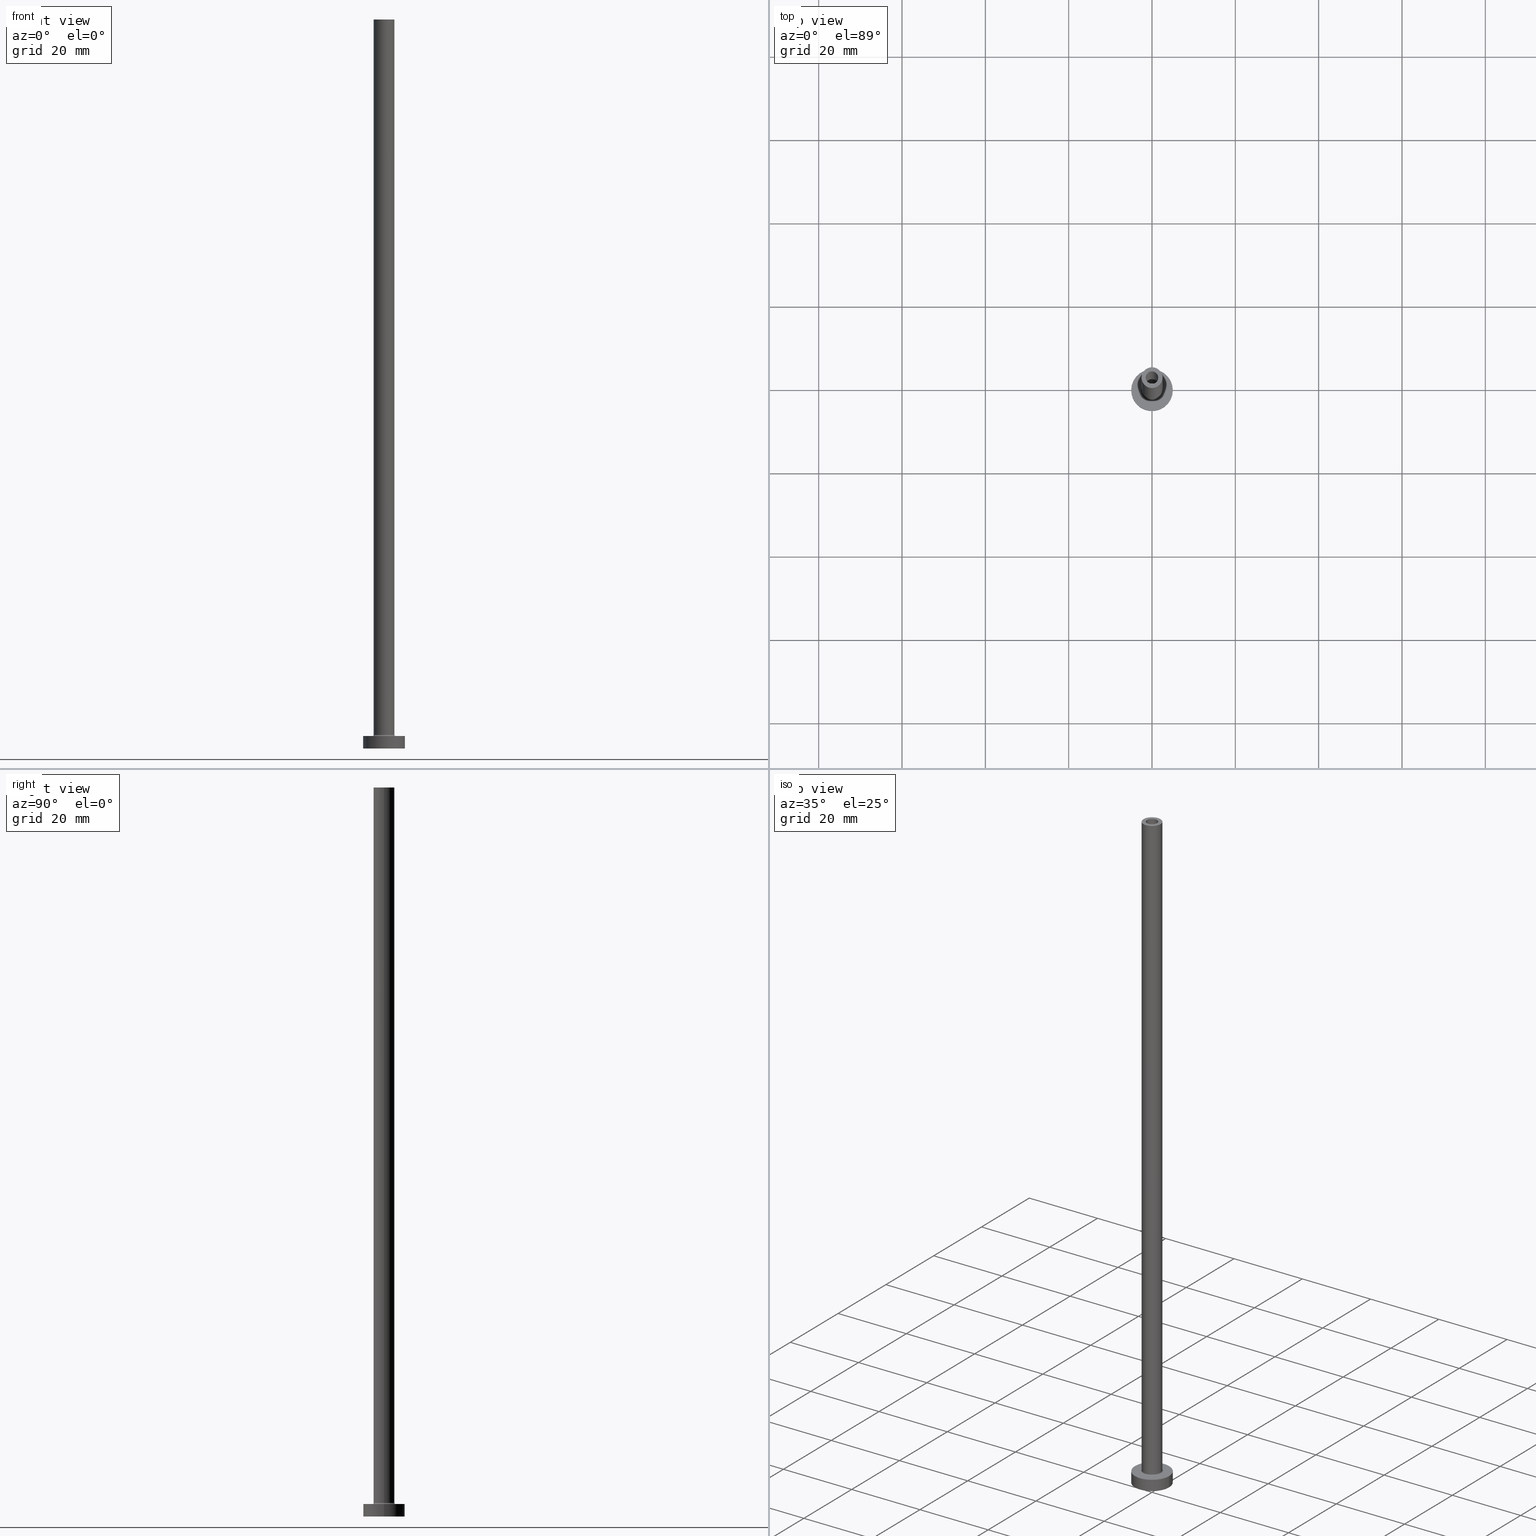
[diagram: canonical four-view strip — front | top / right | iso, engineering-drawing reading convention]
A machine part, canonical four-view strip (front | top / right | iso — engineering-drawing reading convention). The complete STEP part file that produces these views, byte-faithful:
ISO-10303-21;
HEADER;
FILE_DESCRIPTION (( 'STEP AP203' ),
    '1' );
FILE_NAME ('0bfa.STEP',
    '2023-02-13T18:01:52',
    ( '' ),
    ( '' ),
    'SwSTEP 2.0',
    'SolidWorks 2019',
    '' );
FILE_SCHEMA (( 'CONFIG_CONTROL_DESIGN' ));
ENDSEC;

DATA;
#1 = APPLICATION_PROTOCOL_DEFINITION ( 'international standard', 'config_control_design', 1994, #154 ) ;
#2 = COORDINATED_UNIVERSAL_TIME_OFFSET ( 1, 0, .AHEAD. ) ;
#3 = DIRECTION ( 'NONE',  ( 0.000000000000000000, -1.000000000000000000, 0.000000000000000000 ) ) ;
#4 = ORIENTED_EDGE ( 'NONE', *, *, #217, .T. ) ;
#5 = AXIS2_PLACEMENT_3D ( 'NONE', #262, #376, #23 ) ;
#6 = DIRECTION ( 'NONE',  ( 0.000000000000000000, 0.000000000000000000, 1.000000000000000000 ) ) ;
#7 = LOCAL_TIME ( 19, 1, 52.00000000000000000, #389 ) ;
#8 = ORIENTED_EDGE ( 'NONE', *, *, #382, .T. ) ;
#9 = DATE_TIME_ROLE ( 'creation_date' ) ;
#10 = PLANE ( 'NONE',  #447 ) ;
#11 = ORIENTED_EDGE ( 'NONE', *, *, #56, .T. ) ;
#12 = DIRECTION ( 'NONE',  ( -0.000000000000000000, -0.000000000000000000, -1.000000000000000000 ) ) ;
#13 = CC_DESIGN_PERSON_AND_ORGANIZATION_ASSIGNMENT ( #461, #65, ( #83 ) ) ;
#14 = CYLINDRICAL_SURFACE ( 'NONE', #105, 2.500000000000000000 ) ;
#15 = CYLINDRICAL_SURFACE ( 'NONE', #69, 5.000000000000000000 ) ;
#16 = PLANE ( 'NONE',  #133 ) ;
#17 = VECTOR ( 'NONE', #340, 1000.000000000000000 ) ;
#18 = VERTEX_POINT ( 'NONE', #158 ) ;
#19 = DIRECTION ( 'NONE',  ( -1.000000000000000000, 0.000000000000000000, 0.000000000000000000 ) ) ;
#20 = EDGE_CURVE ( 'NONE', #131, #160, #30, .T. ) ;
#21 = CARTESIAN_POINT ( 'NONE',  ( -2.799999999999999822, 3.429011037612588783E-16, 3.299999999999997158 ) ) ;
#22 = CYLINDRICAL_SURFACE ( 'NONE', #421, 1.500000000000000222 ) ;
#23 = DIRECTION ( 'NONE',  ( 1.000000000000000000, 0.000000000000000000, -0.000000000000000000 ) ) ;
#24 = CIRCLE ( 'NONE', #299, 1.650000000000000133 ) ;
#25 = DIRECTION ( 'NONE',  ( 1.000000000000000000, 0.000000000000000000, 0.000000000000000000 ) ) ;
#26 = ORIENTED_EDGE ( 'NONE', *, *, #425, .T. ) ;
#27 = CARTESIAN_POINT ( 'NONE',  ( 2.799999999999999822, 0.000000000000000000, 2.999999999999998668 ) ) ;
#28 = CALENDAR_DATE ( 2023, 13, 2 ) ;
#29 = CARTESIAN_POINT ( 'NONE',  ( 0.000000000000000000, 0.000000000000000000, 3.299999999999997158 ) ) ;
#30 = CIRCLE ( 'NONE', #196, 0.2999999999999999334 ) ;
#31 = CARTESIAN_POINT ( 'NONE',  ( 1.500000000000000222, 1.836970198721029934E-16, 175.0000000000000000 ) ) ;
#32 = CARTESIAN_POINT ( 'NONE',  ( 1.500000000000000222, 1.836970198721029934E-16, 130.0000000000000000 ) ) ;
#33 = AXIS2_PLACEMENT_3D ( 'NONE', #364, #222, #145 ) ;
#34 = CARTESIAN_POINT ( 'NONE',  ( -1.650000000000000133, 0.000000000000000000, 0.000000000000000000 ) ) ;
#35 = CARTESIAN_POINT ( 'NONE',  ( 0.000000000000000000, 0.000000000000000000, 3.000000000000000000 ) ) ;
#36 = VERTEX_POINT ( 'NONE', #162 ) ;
#37 = CARTESIAN_POINT ( 'NONE',  ( 0.000000000000000000, 0.000000000000000000, 0.000000000000000000 ) ) ;
#38 = PRODUCT_DEFINITION ( 'NEZN�M�', '', #41, #413 ) ;
#39 = DIRECTION ( 'NONE',  ( 0.000000000000000000, 0.000000000000000000, -1.000000000000000000 ) ) ;
#40 = PERSON_AND_ORGANIZATION_ROLE ( 'creator' ) ;
#41 = PRODUCT_DEFINITION_FORMATION_WITH_SPECIFIED_SOURCE ( 'LIBOVOLN�', '', #209, .NOT_KNOWN. ) ;
#42 = CARTESIAN_POINT ( 'NONE',  ( 0.000000000000000000, 0.000000000000000000, 130.0000000000000000 ) ) ;
#43 = CC_DESIGN_PERSON_AND_ORGANIZATION_ASSIGNMENT ( #453, #423, ( #41 ) ) ;
#44 = FACE_OUTER_BOUND ( 'NONE', #337, .T. ) ;
#45 = ORIENTED_EDGE ( 'NONE', *, *, #56, .F. ) ;
#46 = DIRECTION ( 'NONE',  ( 1.000000000000000000, 0.000000000000000000, 0.000000000000000000 ) ) ;
#47 = ORIENTED_EDGE ( 'NONE', *, *, #356, .T. ) ;
#48 = CIRCLE ( 'NONE', #136, 2.500000000000000000 ) ;
#49 = ORIENTED_EDGE ( 'NONE', *, *, #144, .F. ) ;
#50 = AXIS2_PLACEMENT_3D ( 'NONE', #309, #419, #166 ) ;
#51 = ADVANCED_FACE ( 'NONE', ( #445 ), #15, .T. ) ;
#52 = FACE_OUTER_BOUND ( 'NONE', #58, .T. ) ;
#53 = DIRECTION ( 'NONE',  ( -0.000000000000000000, -0.000000000000000000, -1.000000000000000000 ) ) ;
#54 = CARTESIAN_POINT ( 'NONE',  ( 0.000000000000000000, 0.000000000000000000, 3.000000000000000000 ) ) ;
#55 = CARTESIAN_POINT ( 'NONE',  ( 0.000000000000000000, 0.000000000000000000, 0.000000000000000000 ) ) ;
#56 = EDGE_CURVE ( 'NONE', #147, #442, #347, .T. ) ;
#57 = VECTOR ( 'NONE', #358, 1000.000000000000000 ) ;
#58 = EDGE_LOOP ( 'NONE', ( #459, #330, #100, #211 ) ) ;
#59 = EDGE_CURVE ( 'NONE', #441, #131, #48, .T. ) ;
#60 = PERSON_AND_ORGANIZATION_ROLE ( 'creator' ) ;
#61 = DIRECTION ( 'NONE',  ( 0.000000000000000000, 0.000000000000000000, 1.000000000000000000 ) ) ;
#62 = CIRCLE ( 'NONE', #157, 1.500000000000000222 ) ;
#63 = CC_DESIGN_DATE_AND_TIME_ASSIGNMENT ( #317, #143, ( #83 ) ) ;
#64 = PERSON ( 'NEUR�EN�', 'NEUR�EN�', 'NEUR�EN�', ('NEUR�EN�'), ('NEUR�EN�'), ('NEUR�EN�') ) ;
#65 = PERSON_AND_ORGANIZATION_ROLE ( 'classification_officer' ) ;
#66 = MANIFOLD_SOLID_BREP ( 'Odebrat vysunut�m4', #434 ) ;
#67 = LINE ( 'NONE', #220, #57 ) ;
#68 = APPROVAL_ROLE ( '' ) ;
#69 = AXIS2_PLACEMENT_3D ( 'NONE', #416, #379, #129 ) ;
#70 = ORIENTED_EDGE ( 'NONE', *, *, #374, .T. ) ;
#71 = CARTESIAN_POINT ( 'NONE',  ( 1.650000000000000133, 2.020667218593133001E-16, 0.000000000000000000 ) ) ;
#72 = CALENDAR_DATE ( 2023, 13, 2 ) ;
#73 = PERSON_AND_ORGANIZATION ( #64, #216 ) ;
#74 = APPROVAL_PERSON_ORGANIZATION ( #427, #152, #68 ) ;
#75 = CC_DESIGN_APPROVAL ( #412, ( #83 ) ) ;
#76 = DIRECTION ( 'NONE',  ( -1.000000000000000000, 0.000000000000000000, 0.000000000000000000 ) ) ;
#77 = DIRECTION ( 'NONE',  ( 1.000000000000000000, 0.000000000000000000, -0.000000000000000000 ) ) ;
#78 = ADVANCED_FACE ( 'NONE', ( #92, #265 ), #411, .T. ) ;
#79 = ORIENTED_EDGE ( 'NONE', *, *, #277, .T. ) ;
#80 = DIRECTION ( 'NONE',  ( 0.000000000000000000, 0.000000000000000000, 1.000000000000000000 ) ) ;
#81 = AXIS2_PLACEMENT_3D ( 'NONE', #267, #404, #192 ) ;
#82 = CARTESIAN_POINT ( 'NONE',  ( 0.000000000000000000, 0.000000000000000000, 0.000000000000000000 ) ) ;
#83 = SECURITY_CLASSIFICATION ( '', '', #352 ) ;
#84 = ORIENTED_EDGE ( 'NONE', *, *, #296, .F. ) ;
#85 = DIRECTION ( 'NONE',  ( 0.000000000000000000, 0.000000000000000000, 1.000000000000000000 ) ) ;
#86 = DIRECTION ( 'NONE',  ( 0.000000000000000000, 0.000000000000000000, -1.000000000000000000 ) ) ;
#87 = ORIENTED_EDGE ( 'NONE', *, *, #275, .F. ) ;
#88 = DIRECTION ( 'NONE',  ( -0.000000000000000000, -0.000000000000000000, -1.000000000000000000 ) ) ;
#89 = CARTESIAN_POINT ( 'NONE',  ( -1.500000000000000222, 0.000000000000000000, 175.0000000000000000 ) ) ;
#90 = LINE ( 'NONE', #114, #138 ) ;
#91 = CARTESIAN_POINT ( 'NONE',  ( -2.500000000000000000, 0.000000000000000000, 175.0000000000000000 ) ) ;
#92 = FACE_BOUND ( 'NONE', #263, .T. ) ;
#93 = CIRCLE ( 'NONE', #198, 5.000000000000000000 ) ;
#94 = AXIS2_PLACEMENT_3D ( 'NONE', #238, #88, #308 ) ;
#95 = EDGE_LOOP ( 'NONE', ( #455, #300 ) ) ;
#96 = DIRECTION ( 'NONE',  ( -1.000000000000000000, 1.224646799147353207E-16, 0.000000000000000000 ) ) ;
#97 = PLANE ( 'NONE',  #290 ) ;
#98 = DIRECTION ( 'NONE',  ( 1.000000000000000000, 0.000000000000000000, 0.000000000000000000 ) ) ;
#99 = AXIS2_PLACEMENT_3D ( 'NONE', #186, #80, #181 ) ;
#100 = ORIENTED_EDGE ( 'NONE', *, *, #217, .F. ) ;
#101 = DIRECTION ( 'NONE',  ( 0.000000000000000000, 0.000000000000000000, 1.000000000000000000 ) ) ;
#102 = CARTESIAN_POINT ( 'NONE',  ( 5.000000000000000000, 6.123233995736766282E-16, 3.000000000000000000 ) ) ;
#103 = APPROVAL_STATUS ( 'not_yet_approved' ) ;
#104 = DIRECTION ( 'NONE',  ( -0.000000000000000000, -0.000000000000000000, -1.000000000000000000 ) ) ;
#105 = AXIS2_PLACEMENT_3D ( 'NONE', #126, #306, #380 ) ;
#106 = CALENDAR_DATE ( 2023, 13, 2 ) ;
#107 = UNCERTAINTY_MEASURE_WITH_UNIT (LENGTH_MEASURE( 1.000000000000000082E-05 ), #449, 'distance_accuracy_value', 'NONE');
#108 = EDGE_CURVE ( 'NONE', #36, #18, #327, .T. ) ;
#109 = VERTEX_POINT ( 'NONE', #194 ) ;
#110 = DIRECTION ( 'NONE',  ( 0.000000000000000000, 0.000000000000000000, -1.000000000000000000 ) ) ;
#111 = AXIS2_PLACEMENT_3D ( 'NONE', #369, #295, #328 ) ;
#112 = CIRCLE ( 'NONE', #205, 1.650000000000000133 ) ;
#113 = CARTESIAN_POINT ( 'NONE',  ( 0.000000000000000000, 0.000000000000000000, 130.0000000000000000 ) ) ;
#114 = CARTESIAN_POINT ( 'NONE',  ( -2.500000000000000000, 0.000000000000000000, 175.0000000000000000 ) ) ;
#115 = EDGE_CURVE ( 'NONE', #224, #448, #368, .T. ) ;
#116 = DIRECTION ( 'NONE',  ( 0.000000000000000000, 0.000000000000000000, 1.000000000000000000 ) ) ;
#117 = CC_DESIGN_PERSON_AND_ORGANIZATION_ASSIGNMENT ( #256, #40, ( #38 ) ) ;
#118 = DIRECTION ( 'NONE',  ( 0.000000000000000000, 0.000000000000000000, 1.000000000000000000 ) ) ;
#119 = ORIENTED_EDGE ( 'NONE', *, *, #202, .T. ) ;
#120 = AXIS2_PLACEMENT_3D ( 'NONE', #319, #454, #178 ) ;
#121 = DIRECTION ( 'NONE',  ( 1.000000000000000000, 0.000000000000000000, 0.000000000000000000 ) ) ;
#122 = DIRECTION ( 'NONE',  ( -1.000000000000000000, 0.000000000000000000, 0.000000000000000000 ) ) ;
#123 = DIRECTION ( 'NONE',  ( 0.000000000000000000, 0.000000000000000000, 1.000000000000000000 ) ) ;
#124 = EDGE_CURVE ( 'NONE', #197, #109, #420, .T. ) ;
#125 = DIRECTION ( 'NONE',  ( -1.000000000000000000, 0.000000000000000000, 0.000000000000000000 ) ) ;
#126 = CARTESIAN_POINT ( 'NONE',  ( 0.000000000000000000, 0.000000000000000000, 175.0000000000000000 ) ) ;
#127 = CC_DESIGN_PERSON_AND_ORGANIZATION_ASSIGNMENT ( #227, #248, ( #209 ) ) ;
#128 = FACE_OUTER_BOUND ( 'NONE', #95, .T. ) ;
#129 = DIRECTION ( 'NONE',  ( -1.000000000000000000, 0.000000000000000000, 0.000000000000000000 ) ) ;
#130 = CC_DESIGN_APPROVAL ( #152, ( #38 ) ) ;
#131 = VERTEX_POINT ( 'NONE', #384 ) ;
#132 = ADVANCED_FACE ( 'NONE', ( #52 ), #228, .F. ) ;
#133 = AXIS2_PLACEMENT_3D ( 'NONE', #159, #301, #264 ) ;
#134 = ORIENTED_EDGE ( 'NONE', *, *, #124, .F. ) ;
#135 = PERSON_AND_ORGANIZATION ( #64, #216 ) ;
#136 = AXIS2_PLACEMENT_3D ( 'NONE', #331, #123, #121 ) ;
#137 = CARTESIAN_POINT ( 'NONE',  ( 0.000000000000000000, 0.000000000000000000, 134.6669047558312116 ) ) ;
#138 = VECTOR ( 'NONE', #12, 1000.000000000000000 ) ;
#139 = LINE ( 'NONE', #280, #315 ) ;
#140 = EDGE_CURVE ( 'NONE', #441, #424, #402, .T. ) ;
#141 = ORIENTED_EDGE ( 'NONE', *, *, #329, .T. ) ;
#142 = DIRECTION ( 'NONE',  ( 0.000000000000000000, 0.000000000000000000, -1.000000000000000000 ) ) ;
#143 = DATE_TIME_ROLE ( 'classification_date' ) ;
#144 = EDGE_CURVE ( 'NONE', #160, #424, #203, .T. ) ;
#145 = DIRECTION ( 'NONE',  ( 1.000000000000000000, 0.000000000000000000, 0.000000000000000000 ) ) ;
#146 = CARTESIAN_POINT ( 'NONE',  ( 2.799999999999999822, 0.000000000000000000, 3.299999999999997158 ) ) ;
#147 = VERTEX_POINT ( 'NONE', #373 ) ;
#148 = ORIENTED_EDGE ( 'NONE', *, *, #259, .F. ) ;
#149 = CIRCLE ( 'NONE', #359, 1.500000000000000222 ) ;
#150 = FACE_OUTER_BOUND ( 'NONE', #219, .T. ) ;
#151 = ORIENTED_EDGE ( 'NONE', *, *, #275, .T. ) ;
#152 = APPROVAL ( #278, 'NEUR�EN�' ) ;
#153 = ORIENTED_EDGE ( 'NONE', *, *, #115, .F. ) ;
#154 = APPLICATION_CONTEXT ( 'configuration controlled 3d designs of mechanical parts and assemblies' ) ;
#155 = ORIENTED_EDGE ( 'NONE', *, *, #210, .F. ) ;
#156 = EDGE_CURVE ( 'NONE', #261, #131, #90, .T. ) ;
#157 = AXIS2_PLACEMENT_3D ( 'NONE', #42, #118, #46 ) ;
#158 = CARTESIAN_POINT ( 'NONE',  ( 1.650000000000000133, 2.020667218593133001E-16, 130.0000000000000000 ) ) ;
#159 = CARTESIAN_POINT ( 'NONE',  ( 0.000000000000000000, 0.000000000000000000, 3.000000000000000000 ) ) ;
#160 = VERTEX_POINT ( 'NONE', #184 ) ;
#161 = ADVANCED_FACE ( 'NONE', ( #190, #443 ), #10, .F. ) ;
#162 = CARTESIAN_POINT ( 'NONE',  ( -1.650000000000000133, 0.000000000000000000, 130.0000000000000000 ) ) ;
#163 = DIRECTION ( 'NONE',  ( 0.000000000000000000, 0.000000000000000000, 1.000000000000000000 ) ) ;
#164 = ORIENTED_EDGE ( 'NONE', *, *, #296, .T. ) ;
#165 = CARTESIAN_POINT ( 'NONE',  ( 0.000000000000000000, 0.000000000000000000, 175.0000000000000000 ) ) ;
#166 = DIRECTION ( 'NONE',  ( 1.000000000000000000, 0.000000000000000000, 0.000000000000000000 ) ) ;
#167 = DIRECTION ( 'NONE',  ( 0.000000000000000000, 0.000000000000000000, -1.000000000000000000 ) ) ;
#168 = LOCAL_TIME ( 19, 1, 52.00000000000000000, #252 ) ;
#169 = CC_DESIGN_SECURITY_CLASSIFICATION ( #83, ( #41 ) ) ;
#170 = ORIENTED_EDGE ( 'NONE', *, *, #144, .T. ) ;
#171 = EDGE_CURVE ( 'NONE', #448, #310, #313, .T. ) ;
#172 = AXIS2_PLACEMENT_3D ( 'NONE', #207, #418, #201 ) ;
#173 = ORIENTED_EDGE ( 'NONE', *, *, #452, .T. ) ;
#174 = APPROVAL ( #321, 'NEUR�EN�' ) ;
#175 = DIRECTION ( 'NONE',  ( 1.000000000000000000, 0.000000000000000000, 0.000000000000000000 ) ) ;
#176 = DATE_AND_TIME ( #429, #231 ) ;
#177 = LINE ( 'NONE', #254, #349 ) ;
#178 = DIRECTION ( 'NONE',  ( 1.000000000000000000, 0.000000000000000000, 0.000000000000000000 ) ) ;
#179 = CIRCLE ( 'NONE', #94, 2.799999999999999822 ) ;
#180 = LINE ( 'NONE', #324, #397 ) ;
#181 = DIRECTION ( 'NONE',  ( 1.000000000000000000, 0.000000000000000000, 0.000000000000000000 ) ) ;
#182 = CARTESIAN_POINT ( 'NONE',  ( -5.000000000000000000, 0.000000000000000000, 3.000000000000000000 ) ) ;
#183 = CYLINDRICAL_SURFACE ( 'NONE', #242, 1.500000000000000222 ) ;
#184 = CARTESIAN_POINT ( 'NONE',  ( -2.799999999999999822, 3.429011037612589276E-16, 2.999999999999998668 ) ) ;
#185 = CARTESIAN_POINT ( 'NONE',  ( 0.000000000000000000, 0.000000000000000000, 175.0000000000000000 ) ) ;
#186 = CARTESIAN_POINT ( 'NONE',  ( 0.000000000000000000, 0.000000000000000000, 130.0000000000000000 ) ) ;
#187 = AXIS2_PLACEMENT_3D ( 'NONE', #29, #101, #25 ) ;
#188 = EDGE_LOOP ( 'NONE', ( #273, #363, #304, #49 ) ) ;
#189 = AXIS2_PLACEMENT_3D ( 'NONE', #35, #332, #232 ) ;
#190 = FACE_BOUND ( 'NONE', #276, .T. ) ;
#191 = ORIENTED_EDGE ( 'NONE', *, *, #408, .F. ) ;
#192 = DIRECTION ( 'NONE',  ( 1.000000000000000000, 0.000000000000000000, 0.000000000000000000 ) ) ;
#193 = ADVANCED_FACE ( 'NONE', ( #150 ), #226, .F. ) ;
#194 = CARTESIAN_POINT ( 'NONE',  ( -5.000000000000000000, 0.000000000000000000, 0.000000000000000000 ) ) ;
#195 = FACE_BOUND ( 'NONE', #334, .T. ) ;
#196 = AXIS2_PLACEMENT_3D ( 'NONE', #21, #303, #96 ) ;
#197 = VERTEX_POINT ( 'NONE', #292 ) ;
#198 = AXIS2_PLACEMENT_3D ( 'NONE', #365, #116, #438 ) ;
#199 = DIRECTION ( 'NONE',  ( -0.000000000000000000, -0.000000000000000000, -1.000000000000000000 ) ) ;
#200 = DIRECTION ( 'NONE',  ( 0.000000000000000000, 0.000000000000000000, 1.000000000000000000 ) ) ;
#201 = DIRECTION ( 'NONE',  ( 1.000000000000000000, 0.000000000000000000, 0.000000000000000000 ) ) ;
#202 = EDGE_CURVE ( 'NONE', #109, #197, #93, .T. ) ;
#203 = CIRCLE ( 'NONE', #189, 2.799999999999999822 ) ;
#204 = DIRECTION ( 'NONE',  ( 0.000000000000000000, 0.000000000000000000, 1.000000000000000000 ) ) ;
#205 = AXIS2_PLACEMENT_3D ( 'NONE', #55, #241, #98 ) ;
#206 = CIRCLE ( 'NONE', #50, 5.000000000000000000 ) ;
#207 = CARTESIAN_POINT ( 'NONE',  ( 0.000000000000000000, 0.000000000000000000, 3.299999999999997158 ) ) ;
#208 = APPLICATION_PROTOCOL_DEFINITION ( 'international standard', 'config_control_design', 1994, #460 ) ;
#209 = PRODUCT ( '0bfa', '0bfa', '', ( #266 ) ) ;
#210 = EDGE_CURVE ( 'NONE', #310, #448, #62, .T. ) ;
#211 = ORIENTED_EDGE ( 'NONE', *, *, #140, .F. ) ;
#212 = ADVANCED_FACE ( 'NONE', ( #195, #335 ), #16, .T. ) ;
#213 = ADVANCED_BREP_SHAPE_REPRESENTATION ( '0bfa', ( #66, #414 ), #366 ) ;
#214 = APPROVAL_DATE_TIME ( #318, #174 ) ;
#215 = EDGE_LOOP ( 'NONE', ( #45, #395, #400, #257 ) ) ;
#216 = ORGANIZATION ( 'NEUR�EN�', 'NEUR�EN�', '' ) ;
#217 = EDGE_CURVE ( 'NONE', #424, #160, #179, .T. ) ;
#218 = CARTESIAN_POINT ( 'NONE',  ( 2.500000000000000000, 3.061616997868383141E-16, 175.0000000000000000 ) ) ;
#219 = EDGE_LOOP ( 'NONE', ( #339, #440, #79, #435 ) ) ;
#220 = CARTESIAN_POINT ( 'NONE',  ( 2.500000000000000000, 3.061616997868383141E-16, 175.0000000000000000 ) ) ;
#221 = CIRCLE ( 'NONE', #120, 2.500000000000000000 ) ;
#222 = DIRECTION ( 'NONE',  ( 0.000000000000000000, 0.000000000000000000, 1.000000000000000000 ) ) ;
#223 = ORIENTED_EDGE ( 'NONE', *, *, #210, .T. ) ;
#224 = VERTEX_POINT ( 'NONE', #375 ) ;
#225 = ADVANCED_FACE ( 'NONE', ( #235 ), #22, .F. ) ;
#226 = CYLINDRICAL_SURFACE ( 'NONE', #250, 1.650000000000000133 ) ;
#227 = PERSON_AND_ORGANIZATION ( #64, #216 ) ;
#228 = TOROIDAL_SURFACE ( 'NONE', #81, 2.799999999999999822, 0.2999999999999999889 ) ;
#229 = EDGE_LOOP ( 'NONE', ( #173, #360, #307, #153 ) ) ;
#230 = LOCAL_TIME ( 19, 1, 52.00000000000000000, #2 ) ;
#231 = LOCAL_TIME ( 19, 1, 52.00000000000000000, #281 ) ;
#232 = DIRECTION ( 'NONE',  ( 1.000000000000000000, 0.000000000000000000, 0.000000000000000000 ) ) ;
#233 =( NAMED_UNIT ( * ) SI_UNIT ( $, .STERADIAN. ) SOLID_ANGLE_UNIT ( ) );
#234 = EDGE_LOOP ( 'NONE', ( #244, #141, #47, #26 ) ) ;
#235 = FACE_OUTER_BOUND ( 'NONE', #229, .T. ) ;
#236 = ORIENTED_EDGE ( 'NONE', *, *, #156, .F. ) ;
#237 = ADVANCED_FACE ( 'NONE', ( #44 ), #333, .T. ) ;
#238 = CARTESIAN_POINT ( 'NONE',  ( 0.000000000000000000, 0.000000000000000000, 3.000000000000000000 ) ) ;
#239 = COORDINATED_UNIVERSAL_TIME_OFFSET ( 1, 0, .AHEAD. ) ;
#240 = EDGE_LOOP ( 'NONE', ( #298, #151, #450, #155 ) ) ;
#241 = DIRECTION ( 'NONE',  ( -0.000000000000000000, -0.000000000000000000, -1.000000000000000000 ) ) ;
#242 = AXIS2_PLACEMENT_3D ( 'NONE', #393, #362, #287 ) ;
#243 = ADVANCED_FACE ( 'NONE', ( #302 ), #14, .T. ) ;
#244 = ORIENTED_EDGE ( 'NONE', *, *, #311, .F. ) ;
#245 = FACE_OUTER_BOUND ( 'NONE', #188, .T. ) ;
#246 = EDGE_LOOP ( 'NONE', ( #410, #8 ) ) ;
#247 = EDGE_LOOP ( 'NONE', ( #437, #134 ) ) ;
#248 = PERSON_AND_ORGANIZATION_ROLE ( 'design_owner' ) ;
#249 = APPROVAL_DATE_TIME ( #176, #412 ) ;
#250 = AXIS2_PLACEMENT_3D ( 'NONE', #409, #86, #125 ) ;
#251 = DIRECTION ( 'NONE',  ( 0.000000000000000000, 0.000000000000000000, -1.000000000000000000 ) ) ;
#252 = COORDINATED_UNIVERSAL_TIME_OFFSET ( 1, 0, .AHEAD. ) ;
#253 = EDGE_LOOP ( 'NONE', ( #405, #11 ) ) ;
#254 = CARTESIAN_POINT ( 'NONE',  ( -5.000000000000000000, 0.000000000000000000, 3.000000000000000000 ) ) ;
#255 = CIRCLE ( 'NONE', #187, 2.500000000000000000 ) ;
#256 = PERSON_AND_ORGANIZATION ( #64, #216 ) ;
#257 = ORIENTED_EDGE ( 'NONE', *, *, #374, .F. ) ;
#258 = DIRECTION ( 'NONE',  ( 1.000000000000000000, 0.000000000000000000, 0.000000000000000000 ) ) ;
#259 = EDGE_CURVE ( 'NONE', #261, #341, #282, .T. ) ;
#260 = AXIS2_PLACEMENT_3D ( 'NONE', #165, #163, #268 ) ;
#261 = VERTEX_POINT ( 'NONE', #91 ) ;
#262 = CARTESIAN_POINT ( 'NONE',  ( 0.000000000000000000, 0.000000000000000000, 175.0000000000000000 ) ) ;
#263 = EDGE_LOOP ( 'NONE', ( #284, #87 ) ) ;
#264 = DIRECTION ( 'NONE',  ( 1.000000000000000000, 0.000000000000000000, -0.000000000000000000 ) ) ;
#265 = FACE_OUTER_BOUND ( 'NONE', #246, .T. ) ;
#266 = MECHANICAL_CONTEXT ( 'NONE', #154, 'mechanical' ) ;
#267 = CARTESIAN_POINT ( 'NONE',  ( 0.000000000000000000, 0.000000000000000000, 3.299999999999997158 ) ) ;
#268 = DIRECTION ( 'NONE',  ( 1.000000000000000000, 0.000000000000000000, 0.000000000000000000 ) ) ;
#269 = DIRECTION ( 'NONE',  ( 1.000000000000000000, 0.000000000000000000, 0.000000000000000000 ) ) ;
#270 = PRODUCT_RELATED_PRODUCT_CATEGORY ( 'detail', '', ( #209 ) ) ;
#271 = DIRECTION ( 'NONE',  ( 0.000000000000000000, 0.000000000000000000, -1.000000000000000000 ) ) ;
#272 = ADVANCED_FACE ( 'NONE', ( #446, #128 ), #97, .F. ) ;
#273 = ORIENTED_EDGE ( 'NONE', *, *, #20, .F. ) ;
#274 = AXIS2_PLACEMENT_3D ( 'NONE', #381, #53, #361 ) ;
#275 = EDGE_CURVE ( 'NONE', #370, #224, #336, .T. ) ;
#276 = EDGE_LOOP ( 'NONE', ( #348, #367 ) ) ;
#277 = EDGE_CURVE ( 'NONE', #293, #297, #24, .T. ) ;
#278 = APPROVAL_STATUS ( 'not_yet_approved' ) ;
#279 = CARTESIAN_POINT ( 'NONE',  ( -1.650000000000000133, 0.000000000000000000, 134.6669047558312116 ) ) ;
#280 = CARTESIAN_POINT ( 'NONE',  ( 1.500000000000000222, 1.836970198721029934E-16, 175.0000000000000000 ) ) ;
#281 = COORDINATED_UNIVERSAL_TIME_OFFSET ( 1, 0, .AHEAD. ) ;
#282 = CIRCLE ( 'NONE', #260, 2.500000000000000000 ) ;
#283 = CYLINDRICAL_SURFACE ( 'NONE', #444, 1.650000000000000133 ) ;
#284 = ORIENTED_EDGE ( 'NONE', *, *, #452, .F. ) ;
#285 = PERSON_AND_ORGANIZATION ( #64, #216 ) ;
#286 = EDGE_CURVE ( 'NONE', #370, #310, #139, .T. ) ;
#287 = DIRECTION ( 'NONE',  ( -1.000000000000000000, 0.000000000000000000, 0.000000000000000000 ) ) ;
#288 = AXIS2_PLACEMENT_3D ( 'NONE', #54, #200, #269 ) ;
#289 = DIRECTION ( 'NONE',  ( 0.000000000000000000, 0.000000000000000000, 1.000000000000000000 ) ) ;
#290 = AXIS2_PLACEMENT_3D ( 'NONE', #113, #456, #354 ) ;
#291 = CARTESIAN_POINT ( 'NONE',  ( 2.500000000000000000, 3.061616997868383141E-16, 3.299999999999997158 ) ) ;
#292 = CARTESIAN_POINT ( 'NONE',  ( 5.000000000000000000, 6.123233995736766282E-16, 0.000000000000000000 ) ) ;
#293 = VERTEX_POINT ( 'NONE', #71 ) ;
#294 = ADVANCED_FACE ( 'NONE', ( #392 ), #183, .F. ) ;
#295 = DIRECTION ( 'NONE',  ( 0.000000000000000000, 0.000000000000000000, 1.000000000000000000 ) ) ;
#296 = EDGE_CURVE ( 'NONE', #341, #441, #67, .T. ) ;
#297 = VERTEX_POINT ( 'NONE', #34 ) ;
#298 = ORIENTED_EDGE ( 'NONE', *, *, #286, .F. ) ;
#299 = AXIS2_PLACEMENT_3D ( 'NONE', #37, #432, #175 ) ;
#300 = ORIENTED_EDGE ( 'NONE', *, *, #329, .F. ) ;
#301 = DIRECTION ( 'NONE',  ( 0.000000000000000000, 0.000000000000000000, 1.000000000000000000 ) ) ;
#302 = FACE_OUTER_BOUND ( 'NONE', #407, .T. ) ;
#303 = DIRECTION ( 'NONE',  ( 1.224646799147353207E-16, 1.000000000000000000, -0.000000000000000000 ) ) ;
#304 = ORIENTED_EDGE ( 'NONE', *, *, #140, .T. ) ;
#305 = APPROVAL_PERSON_ORGANIZATION ( #285, #174, #390 ) ;
#306 = DIRECTION ( 'NONE',  ( -0.000000000000000000, -0.000000000000000000, -1.000000000000000000 ) ) ;
#307 = ORIENTED_EDGE ( 'NONE', *, *, #171, .F. ) ;
#308 = DIRECTION ( 'NONE',  ( 1.000000000000000000, 0.000000000000000000, 0.000000000000000000 ) ) ;
#309 = CARTESIAN_POINT ( 'NONE',  ( 0.000000000000000000, 0.000000000000000000, 3.000000000000000000 ) ) ;
#310 = VERTEX_POINT ( 'NONE', #32 ) ;
#311 = EDGE_CURVE ( 'NONE', #18, #293, #180, .T. ) ;
#312 = CYLINDRICAL_SURFACE ( 'NONE', #274, 2.500000000000000000 ) ;
#313 = CIRCLE ( 'NONE', #111, 1.500000000000000222 ) ;
#314 = DIRECTION ( 'NONE',  ( 1.000000000000000000, 0.000000000000000000, 0.000000000000000000 ) ) ;
#315 = VECTOR ( 'NONE', #251, 1000.000000000000000 ) ;
#316 = EDGE_LOOP ( 'NONE', ( #323, #164, #387, #236 ) ) ;
#317 = DATE_AND_TIME ( #396, #230 ) ;
#318 = DATE_AND_TIME ( #106, #168 ) ;
#319 = CARTESIAN_POINT ( 'NONE',  ( 0.000000000000000000, 0.000000000000000000, 175.0000000000000000 ) ) ;
#320 = AXIS2_PLACEMENT_3D ( 'NONE', #146, #3, #39 ) ;
#321 = APPROVAL_STATUS ( 'not_yet_approved' ) ;
#322 = VECTOR ( 'NONE', #110, 1000.000000000000000 ) ;
#323 = ORIENTED_EDGE ( 'NONE', *, *, #382, .F. ) ;
#324 = CARTESIAN_POINT ( 'NONE',  ( 1.650000000000000133, 2.020667218593133001E-16, 134.6669047558312116 ) ) ;
#325 = DIRECTION ( 'NONE',  ( 0.000000000000000000, 0.000000000000000000, -1.000000000000000000 ) ) ;
#326 = CARTESIAN_POINT ( 'NONE',  ( -1.500000000000000222, 0.000000000000000000, 130.0000000000000000 ) ) ;
#327 = CIRCLE ( 'NONE', #439, 1.650000000000000133 ) ;
#328 = DIRECTION ( 'NONE',  ( 1.000000000000000000, 0.000000000000000000, 0.000000000000000000 ) ) ;
#329 = EDGE_CURVE ( 'NONE', #18, #36, #451, .T. ) ;
#330 = ORIENTED_EDGE ( 'NONE', *, *, #20, .T. ) ;
#331 = CARTESIAN_POINT ( 'NONE',  ( 0.000000000000000000, 0.000000000000000000, 3.299999999999997158 ) ) ;
#332 = DIRECTION ( 'NONE',  ( -0.000000000000000000, -0.000000000000000000, -1.000000000000000000 ) ) ;
#333 = CYLINDRICAL_SURFACE ( 'NONE', #458, 5.000000000000000000 ) ;
#334 = EDGE_LOOP ( 'NONE', ( #4, #170 ) ) ;
#335 = FACE_OUTER_BOUND ( 'NONE', #253, .T. ) ;
#336 = CIRCLE ( 'NONE', #33, 1.500000000000000222 ) ;
#337 = EDGE_LOOP ( 'NONE', ( #191, #351, #70, #119 ) ) ;
#338 = CC_DESIGN_PERSON_AND_ORGANIZATION_ASSIGNMENT ( #73, #60, ( #41 ) ) ;
#339 = ORIENTED_EDGE ( 'NONE', *, *, #108, .T. ) ;
#340 = DIRECTION ( 'NONE',  ( -0.000000000000000000, -0.000000000000000000, -1.000000000000000000 ) ) ;
#341 = VERTEX_POINT ( 'NONE', #218 ) ;
#342 = DIRECTION ( 'NONE',  ( 1.000000000000000000, 0.000000000000000000, 0.000000000000000000 ) ) ;
#343 = APPROVAL_PERSON_ORGANIZATION ( #135, #412, #426 ) ;
#344 = ORIENTED_EDGE ( 'NONE', *, *, #171, .T. ) ;
#345 = FACE_OUTER_BOUND ( 'NONE', #316, .T. ) ;
#346 = ORIENTED_EDGE ( 'NONE', *, *, #156, .T. ) ;
#347 = CIRCLE ( 'NONE', #288, 5.000000000000000000 ) ;
#348 = ORIENTED_EDGE ( 'NONE', *, *, #425, .F. ) ;
#349 = VECTOR ( 'NONE', #104, 1000.000000000000000 ) ;
#350 = CARTESIAN_POINT ( 'NONE',  ( 0.000000000000000000, 0.000000000000000000, 0.000000000000000000 ) ) ;
#351 = ORIENTED_EDGE ( 'NONE', *, *, #422, .F. ) ;
#352 = SECURITY_CLASSIFICATION_LEVEL ( 'unclassified' ) ;
#353 = LINE ( 'NONE', #279, #322 ) ;
#354 = DIRECTION ( 'NONE',  ( 1.000000000000000000, 0.000000000000000000, -0.000000000000000000 ) ) ;
#355 = EDGE_LOOP ( 'NONE', ( #344, #223 ) ) ;
#356 = EDGE_CURVE ( 'NONE', #36, #297, #353, .T. ) ;
#357 = VECTOR ( 'NONE', #167, 1000.000000000000000 ) ;
#358 = DIRECTION ( 'NONE',  ( -0.000000000000000000, -0.000000000000000000, -1.000000000000000000 ) ) ;
#359 = AXIS2_PLACEMENT_3D ( 'NONE', #185, #6, #258 ) ;
#360 = ORIENTED_EDGE ( 'NONE', *, *, #286, .T. ) ;
#361 = DIRECTION ( 'NONE',  ( -1.000000000000000000, 0.000000000000000000, 0.000000000000000000 ) ) ;
#362 = DIRECTION ( 'NONE',  ( 0.000000000000000000, 0.000000000000000000, -1.000000000000000000 ) ) ;
#363 = ORIENTED_EDGE ( 'NONE', *, *, #59, .F. ) ;
#364 = CARTESIAN_POINT ( 'NONE',  ( 0.000000000000000000, 0.000000000000000000, 175.0000000000000000 ) ) ;
#365 = CARTESIAN_POINT ( 'NONE',  ( 0.000000000000000000, 0.000000000000000000, 0.000000000000000000 ) ) ;
#366 =( GEOMETRIC_REPRESENTATION_CONTEXT ( 3 ) GLOBAL_UNCERTAINTY_ASSIGNED_CONTEXT ( ( #107 ) ) GLOBAL_UNIT_ASSIGNED_CONTEXT ( ( #449, #371, #233 ) ) REPRESENTATION_CONTEXT ( 'NONE', 'WORKASPACE' ) );
#367 = ORIENTED_EDGE ( 'NONE', *, *, #277, .F. ) ;
#368 = LINE ( 'NONE', #89, #357 ) ;
#369 = CARTESIAN_POINT ( 'NONE',  ( 0.000000000000000000, 0.000000000000000000, 130.0000000000000000 ) ) ;
#370 = VERTEX_POINT ( 'NONE', #31 ) ;
#371 =( NAMED_UNIT ( * ) PLANE_ANGLE_UNIT ( ) SI_UNIT ( $, .RADIAN. ) );
#372 = DATE_AND_TIME ( #28, #391 ) ;
#373 = CARTESIAN_POINT ( 'NONE',  ( 5.000000000000000000, 6.123233995736766282E-16, 3.000000000000000000 ) ) ;
#374 = EDGE_CURVE ( 'NONE', #442, #109, #177, .T. ) ;
#375 = CARTESIAN_POINT ( 'NONE',  ( -1.500000000000000222, 0.000000000000000000, 175.0000000000000000 ) ) ;
#376 = DIRECTION ( 'NONE',  ( 0.000000000000000000, 0.000000000000000000, 1.000000000000000000 ) ) ;
#377 = ORIENTED_EDGE ( 'NONE', *, *, #415, .T. ) ;
#378 = TOROIDAL_SURFACE ( 'NONE', #172, 2.799999999999999822, 0.2999999999999999889 ) ;
#379 = DIRECTION ( 'NONE',  ( -0.000000000000000000, -0.000000000000000000, -1.000000000000000000 ) ) ;
#380 = DIRECTION ( 'NONE',  ( -1.000000000000000000, 0.000000000000000000, 0.000000000000000000 ) ) ;
#381 = CARTESIAN_POINT ( 'NONE',  ( 0.000000000000000000, 0.000000000000000000, 175.0000000000000000 ) ) ;
#382 = EDGE_CURVE ( 'NONE', #341, #261, #221, .T. ) ;
#383 = CARTESIAN_POINT ( 'NONE',  ( 0.000000000000000000, 0.000000000000000000, 130.0000000000000000 ) ) ;
#384 = CARTESIAN_POINT ( 'NONE',  ( -2.500000000000000000, 0.000000000000000000, 3.299999999999997158 ) ) ;
#385 = PRODUCT_DEFINITION_SHAPE ( 'NONE', 'NONE',  #38 ) ;
#386 = SHAPE_DEFINITION_REPRESENTATION ( #385, #213 ) ;
#387 = ORIENTED_EDGE ( 'NONE', *, *, #59, .T. ) ;
#388 = AXIS2_PLACEMENT_3D ( 'NONE', #82, #204, #314 ) ;
#389 = COORDINATED_UNIVERSAL_TIME_OFFSET ( 1, 0, .AHEAD. ) ;
#390 = APPROVAL_ROLE ( '' ) ;
#391 = LOCAL_TIME ( 19, 1, 52.00000000000000000, #239 ) ;
#392 = FACE_OUTER_BOUND ( 'NONE', #240, .T. ) ;
#393 = CARTESIAN_POINT ( 'NONE',  ( 0.000000000000000000, 0.000000000000000000, 175.0000000000000000 ) ) ;
#394 = APPROVAL_DATE_TIME ( #457, #152 ) ;
#395 = ORIENTED_EDGE ( 'NONE', *, *, #408, .T. ) ;
#396 = CALENDAR_DATE ( 2023, 13, 2 ) ;
#397 = VECTOR ( 'NONE', #142, 1000.000000000000000 ) ;
#398 = FACE_OUTER_BOUND ( 'NONE', #234, .T. ) ;
#399 = ADVANCED_FACE ( 'NONE', ( #398 ), #283, .F. ) ;
#400 = ORIENTED_EDGE ( 'NONE', *, *, #124, .T. ) ;
#401 = CARTESIAN_POINT ( 'NONE',  ( 0.000000000000000000, 0.000000000000000000, 0.000000000000000000 ) ) ;
#402 = CIRCLE ( 'NONE', #320, 0.2999999999999999334 ) ;
#403 = DIRECTION ( 'NONE',  ( 1.000000000000000000, 0.000000000000000000, 0.000000000000000000 ) ) ;
#404 = DIRECTION ( 'NONE',  ( 0.000000000000000000, 0.000000000000000000, 1.000000000000000000 ) ) ;
#405 = ORIENTED_EDGE ( 'NONE', *, *, #422, .T. ) ;
#406 = CARTESIAN_POINT ( 'NONE',  ( 0.000000000000000000, 0.000000000000000000, 175.0000000000000000 ) ) ;
#407 = EDGE_LOOP ( 'NONE', ( #84, #148, #346, #377 ) ) ;
#408 = EDGE_CURVE ( 'NONE', #147, #197, #431, .T. ) ;
#409 = CARTESIAN_POINT ( 'NONE',  ( 0.000000000000000000, 0.000000000000000000, 134.6669047558312116 ) ) ;
#410 = ORIENTED_EDGE ( 'NONE', *, *, #259, .T. ) ;
#411 = PLANE ( 'NONE',  #5 ) ;
#412 = APPROVAL ( #103, 'NEUR�EN�' ) ;
#413 = DESIGN_CONTEXT ( 'detailed design', #460, 'design' ) ;
#414 = AXIS2_PLACEMENT_3D ( 'NONE', #350, #61, #342 ) ;
#415 = EDGE_CURVE ( 'NONE', #131, #441, #255, .T. ) ;
#416 = CARTESIAN_POINT ( 'NONE',  ( 0.000000000000000000, 0.000000000000000000, 3.000000000000000000 ) ) ;
#417 = CARTESIAN_POINT ( 'NONE',  ( 0.000000000000000000, 0.000000000000000000, 3.000000000000000000 ) ) ;
#418 = DIRECTION ( 'NONE',  ( 0.000000000000000000, 0.000000000000000000, 1.000000000000000000 ) ) ;
#419 = DIRECTION ( 'NONE',  ( 0.000000000000000000, 0.000000000000000000, 1.000000000000000000 ) ) ;
#420 = CIRCLE ( 'NONE', #388, 5.000000000000000000 ) ;
#421 = AXIS2_PLACEMENT_3D ( 'NONE', #406, #271, #122 ) ;
#422 = EDGE_CURVE ( 'NONE', #442, #147, #206, .T. ) ;
#423 = PERSON_AND_ORGANIZATION_ROLE ( 'design_supplier' ) ;
#424 = VERTEX_POINT ( 'NONE', #27 ) ;
#425 = EDGE_CURVE ( 'NONE', #297, #293, #112, .T. ) ;
#426 = APPROVAL_ROLE ( '' ) ;
#427 = PERSON_AND_ORGANIZATION ( #64, #216 ) ;
#428 = ADVANCED_FACE ( 'NONE', ( #245 ), #378, .F. ) ;
#429 = CALENDAR_DATE ( 2023, 13, 2 ) ;
#430 = CC_DESIGN_APPROVAL ( #174, ( #41 ) ) ;
#431 = LINE ( 'NONE', #102, #17 ) ;
#432 = DIRECTION ( 'NONE',  ( -0.000000000000000000, -0.000000000000000000, -1.000000000000000000 ) ) ;
#433 = ADVANCED_FACE ( 'NONE', ( #345 ), #312, .T. ) ;
#434 = CLOSED_SHELL ( 'NONE', ( #225, #193, #132, #433, #51, #237, #212, #161, #243, #78, #428, #399, #272, #294 ) ) ;
#435 = ORIENTED_EDGE ( 'NONE', *, *, #356, .F. ) ;
#436 = CC_DESIGN_DATE_AND_TIME_ASSIGNMENT ( #372, #9, ( #38 ) ) ;
#437 = ORIENTED_EDGE ( 'NONE', *, *, #202, .F. ) ;
#438 = DIRECTION ( 'NONE',  ( 1.000000000000000000, 0.000000000000000000, 0.000000000000000000 ) ) ;
#439 = AXIS2_PLACEMENT_3D ( 'NONE', #383, #85, #403 ) ;
#440 = ORIENTED_EDGE ( 'NONE', *, *, #311, .T. ) ;
#441 = VERTEX_POINT ( 'NONE', #291 ) ;
#442 = VERTEX_POINT ( 'NONE', #182 ) ;
#443 = FACE_OUTER_BOUND ( 'NONE', #247, .T. ) ;
#444 = AXIS2_PLACEMENT_3D ( 'NONE', #137, #325, #76 ) ;
#445 = FACE_OUTER_BOUND ( 'NONE', #215, .T. ) ;
#446 = FACE_BOUND ( 'NONE', #355, .T. ) ;
#447 = AXIS2_PLACEMENT_3D ( 'NONE', #401, #289, #77 ) ;
#448 = VERTEX_POINT ( 'NONE', #326 ) ;
#449 =( LENGTH_UNIT ( ) NAMED_UNIT ( * ) SI_UNIT ( .MILLI., .METRE. ) );
#450 = ORIENTED_EDGE ( 'NONE', *, *, #115, .T. ) ;
#451 = CIRCLE ( 'NONE', #99, 1.650000000000000133 ) ;
#452 = EDGE_CURVE ( 'NONE', #224, #370, #149, .T. ) ;
#453 = PERSON_AND_ORGANIZATION ( #64, #216 ) ;
#454 = DIRECTION ( 'NONE',  ( 0.000000000000000000, 0.000000000000000000, 1.000000000000000000 ) ) ;
#455 = ORIENTED_EDGE ( 'NONE', *, *, #108, .F. ) ;
#456 = DIRECTION ( 'NONE',  ( 0.000000000000000000, 0.000000000000000000, 1.000000000000000000 ) ) ;
#457 = DATE_AND_TIME ( #72, #7 ) ;
#458 = AXIS2_PLACEMENT_3D ( 'NONE', #417, #199, #19 ) ;
#459 = ORIENTED_EDGE ( 'NONE', *, *, #415, .F. ) ;
#460 = APPLICATION_CONTEXT ( 'configuration controlled 3d designs of mechanical parts and assemblies' ) ;
#461 = PERSON_AND_ORGANIZATION ( #64, #216 ) ;
ENDSEC;
END-ISO-10303-21;
